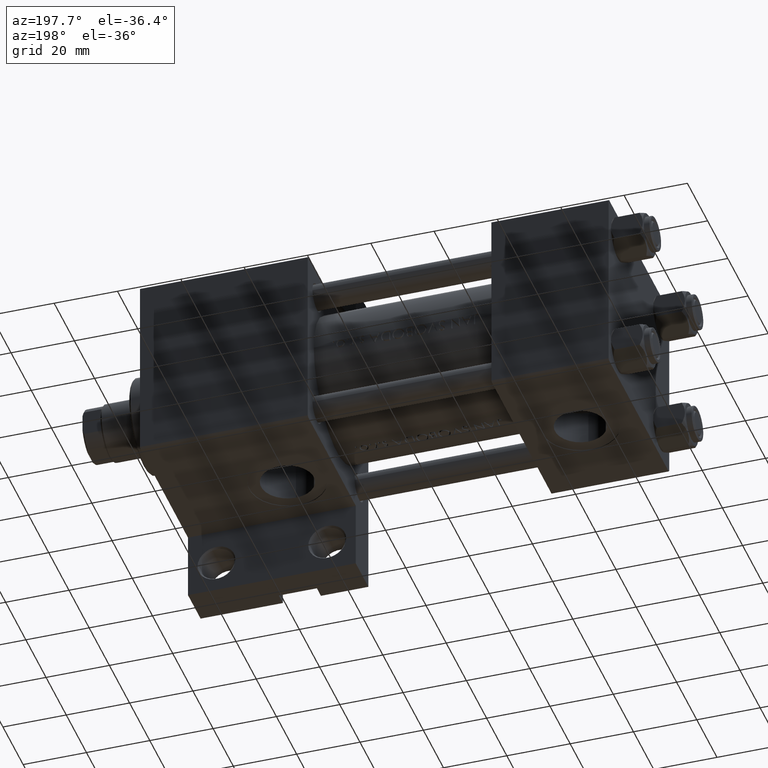
[diagram: clean part render]
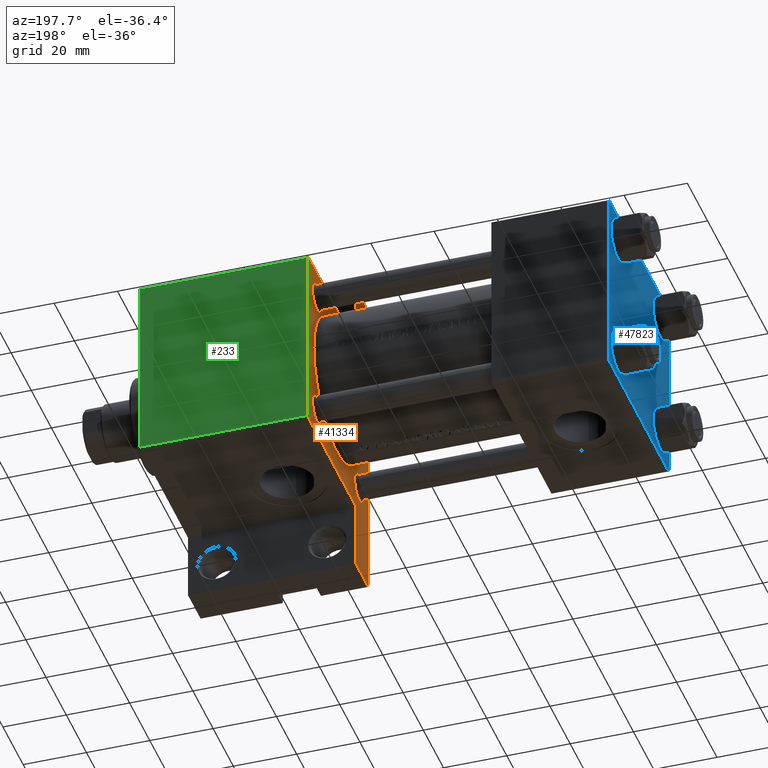
[diagram: same view with three faces highlighted in distinct colors, each labeled with its STEP entity id]
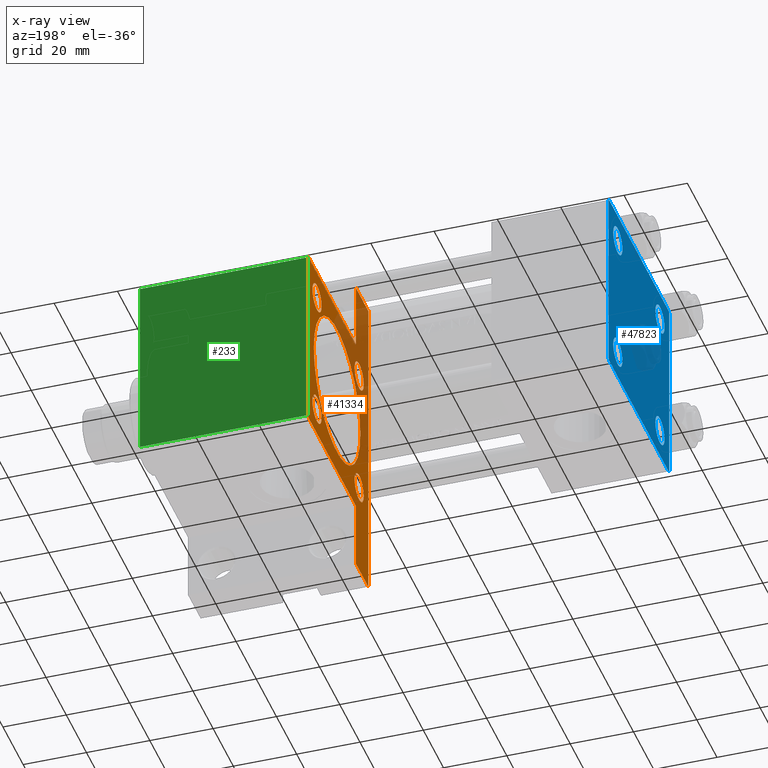
[diagram: x-ray of the same camera — body ghosted, the three highlighted faces saturated]
A machine part, auxiliary view with three faces highlighted in distinct colors.
The next image is the same camera in x-ray (body ghosted, the three faces saturated) — at least one of them is partly hidden behind the body in this view.
Their STEP definitions:

[orange] entity #41334 — the highlighted planar face has unit normal (-1, 0, -0).
#73 = CIRCLE ( 'NONE', #32353, 4.500000000000007105 ) ;
#193 = ORIENTED_EDGE ( 'NONE', *, *, #23234, .T. ) ;
#827 = VECTOR ( 'NONE', #14568, 1000.000000000000000 ) ;
#1005 = LINE ( 'NONE', #37741, #15352 ) ;
#1139 = CARTESIAN_POINT ( 'NONE',  ( 95.00000000000000000, -29.74999999999918643, 29.75000000000083489 ) ) ;
#1269 = CARTESIAN_POINT ( 'NONE',  ( 95.00000000000000000, 0.000000000000000000, 0.000000000000000000 ) ) ;
#1609 = EDGE_CURVE ( 'NONE', #26492, #2798, #39566, .T. ) ;
#1756 = FACE_BOUND ( 'NONE', #48092, .T. ) ;
#2008 = ORIENTED_EDGE ( 'NONE', *, *, #23880, .F. ) ;
#2347 = EDGE_LOOP ( 'NONE', ( #14736, #22246 ) ) ;
#2739 = VERTEX_POINT ( 'NONE', #41211 ) ;
#2798 = VERTEX_POINT ( 'NONE', #40483 ) ;
#3748 = VECTOR ( 'NONE', #44422, 1000.000000000000114 ) ;
#3816 = EDGE_CURVE ( 'NONE', #27832, #28043, #18248, .T. ) ;
#4002 = ORIENTED_EDGE ( 'NONE', *, *, #32441, .T. ) ;
#4029 = CIRCLE ( 'NONE', #45799, 4.500000000000007105 ) ;
#4168 = CARTESIAN_POINT ( 'NONE',  ( 95.00000000000000000, 20.84999999999999787, -25.35000000000000853 ) ) ;
#4318 = CARTESIAN_POINT ( 'NONE',  ( 95.00000000000000000, 20.84999999999999787, 16.34999999999999432 ) ) ;
#4419 = AXIS2_PLACEMENT_3D ( 'NONE', #29352, #44417, #40720 ) ;
#4437 = CARTESIAN_POINT ( 'NONE',  ( 95.00000000000000000, 20.84999999999999787, 20.85000000000000142 ) ) ;
#4466 = EDGE_CURVE ( 'NONE', #28643, #37609, #44851, .T. ) ;
#4702 = EDGE_CURVE ( 'NONE', #16919, #26312, #22190, .T. ) ;
#4817 = CARTESIAN_POINT ( 'NONE',  ( 95.00000000000000000, 20.84999999999999787, 20.85000000000000142 ) ) ;
#5158 = CARTESIAN_POINT ( 'NONE',  ( 95.00000000000000000, -1.224646799147354686E-16, 24.00000000000000000 ) ) ;
#5656 = DIRECTION ( 'NONE',  ( 0.000000000000000000, 0.000000000000000000, -1.000000000000000000 ) ) ;
#5715 = ORIENTED_EDGE ( 'NONE', *, *, #40300, .T. ) ;
#5898 = ORIENTED_EDGE ( 'NONE', *, *, #13881, .T. ) ;
#6409 = CARTESIAN_POINT ( 'NONE',  ( 94.99999999999998579, -51.50000000000000711, -17.49999999999999645 ) ) ;
#6979 = DIRECTION ( 'NONE',  ( 0.000000000000000000, 0.000000000000000000, -1.000000000000000000 ) ) ;
#8004 = DIRECTION ( 'NONE',  ( 0.000000000000000000, 0.000000000000000000, 1.000000000000000000 ) ) ;
#8199 = VERTEX_POINT ( 'NONE', #29381 ) ;
#8653 = FACE_BOUND ( 'NONE', #44129, .T. ) ;
#8722 = VERTEX_POINT ( 'NONE', #46289 ) ;
#8796 = ORIENTED_EDGE ( 'NONE', *, *, #1609, .F. ) ;
#9333 = AXIS2_PLACEMENT_3D ( 'NONE', #4437, #27362, #42423 ) ;
#9339 = VERTEX_POINT ( 'NONE', #45028 ) ;
#9367 = DIRECTION ( 'NONE',  ( 1.000000000000000000, -0.000000000000000000, 0.000000000000000000 ) ) ;
#9763 = ORIENTED_EDGE ( 'NONE', *, *, #20772, .T. ) ;
#10124 = EDGE_CURVE ( 'NONE', #24781, #44013, #26021, .T. ) ;
#10144 = DIRECTION ( 'NONE',  ( 1.000000000000000000, -0.000000000000000000, 0.000000000000000000 ) ) ;
#10638 = ORIENTED_EDGE ( 'NONE', *, *, #12076, .T. ) ;
#10872 = AXIS2_PLACEMENT_3D ( 'NONE', #23919, #9367, #12100 ) ;
#11227 = EDGE_CURVE ( 'NONE', #8199, #22906, #73, .T. ) ;
#11744 = VECTOR ( 'NONE', #5656, 1000.000000000000000 ) ;
#11844 = ORIENTED_EDGE ( 'NONE', *, *, #44797, .T. ) ;
#12076 = EDGE_CURVE ( 'NONE', #31168, #43957, #4029, .T. ) ;
#12100 = DIRECTION ( 'NONE',  ( 0.000000000000000000, 0.000000000000000000, 1.000000000000000000 ) ) ;
#12440 = DIRECTION ( 'NONE',  ( 1.000000000000000000, -0.000000000000000000, 0.000000000000000000 ) ) ;
#12553 = DIRECTION ( 'NONE',  ( 1.000000000000000000, -0.000000000000000000, 0.000000000000000000 ) ) ;
#12854 = ORIENTED_EDGE ( 'NONE', *, *, #30401, .T. ) ;
#13285 = CIRCLE ( 'NONE', #9333, 4.500000000000007105 ) ;
#13881 = EDGE_CURVE ( 'NONE', #22906, #8199, #41887, .T. ) ;
#14178 = CARTESIAN_POINT ( 'NONE',  ( 95.00000000000000000, 2.694222958124176415E-15, -22.00000000000000000 ) ) ;
#14329 = CARTESIAN_POINT ( 'NONE',  ( 95.00000000000000000, 51.50000000000000711, -17.49999999999999645 ) ) ;
#14399 = LINE ( 'NONE', #45215, #47136 ) ;
#14568 = DIRECTION ( 'NONE',  ( 6.454785026890443649E-16, 1.000000000000000000, 0.000000000000000000 ) ) ;
#14736 = ORIENTED_EDGE ( 'NONE', *, *, #33236, .T. ) ;
#14922 = ORIENTED_EDGE ( 'NONE', *, *, #46861, .F. ) ;
#15278 = VECTOR ( 'NONE', #20115, 1000.000000000000000 ) ;
#15352 = VECTOR ( 'NONE', #16046, 1000.000000000000000 ) ;
#16046 = DIRECTION ( 'NONE',  ( 0.000000000000000000, -1.000000000000000000, -1.156482317317871478E-16 ) ) ;
#16527 = CARTESIAN_POINT ( 'NONE',  ( 95.00000000000000000, -1.224646799147354686E-16, 1.000000000000000888 ) ) ;
#16584 = AXIS2_PLACEMENT_3D ( 'NONE', #34736, #12553, #28022 ) ;
#16919 = VERTEX_POINT ( 'NONE', #22536 ) ;
#17019 = PLANE ( 'NONE',  #27397 ) ;
#17179 = CIRCLE ( 'NONE', #10872, 4.500000000000007105 ) ;
#17428 = DIRECTION ( 'NONE',  ( 1.000000000000000000, -0.000000000000000000, 0.000000000000000000 ) ) ;
#17596 = CARTESIAN_POINT ( 'NONE',  ( 95.00000000000000000, 30.00000000000000000, 30.00000000000000000 ) ) ;
#17734 = DIRECTION ( 'NONE',  ( 0.000000000000000000, 0.000000000000000000, 1.000000000000000000 ) ) ;
#18067 = DIRECTION ( 'NONE',  ( -0.000000000000000000, 1.000000000000000000, -0.000000000000000000 ) ) ;
#18248 = LINE ( 'NONE', #33290, #827 ) ;
#19649 = VECTOR ( 'NONE', #30076, 1000.000000000000000 ) ;
#20115 = DIRECTION ( 'NONE',  ( -0.000000000000000000, 0.7071067811865671127, 0.7071067811865279218 ) ) ;
#20711 = DIRECTION ( 'NONE',  ( -1.000000000000000000, 0.000000000000000000, -0.000000000000000000 ) ) ;
#20772 = EDGE_CURVE ( 'NONE', #44013, #24781, #17179, .T. ) ;
#21004 = DIRECTION ( 'NONE',  ( 0.000000000000000000, 0.000000000000000000, 1.000000000000000000 ) ) ;
#21477 = LINE ( 'NONE', #32585, #3748 ) ;
#21527 = CARTESIAN_POINT ( 'NONE',  ( 94.99999999999998579, -51.50000000000000711, -17.49999999999999645 ) ) ;
#21818 = ORIENTED_EDGE ( 'NONE', *, *, #23173, .T. ) ;
#22183 = AXIS2_PLACEMENT_3D ( 'NONE', #38815, #12440, #21004 ) ;
#22187 = ORIENTED_EDGE ( 'NONE', *, *, #10124, .T. ) ;
#22190 = LINE ( 'NONE', #14329, #19649 ) ;
#22246 = ORIENTED_EDGE ( 'NONE', *, *, #4466, .T. ) ;
#22436 = VERTEX_POINT ( 'NONE', #14178 ) ;
#22536 = CARTESIAN_POINT ( 'NONE',  ( 95.00000000000000000, 51.50000000000000711, -17.49999999999999645 ) ) ;
#22553 = DIRECTION ( 'NONE',  ( 1.000000000000000000, -0.000000000000000000, 0.000000000000000000 ) ) ;
#22906 = VERTEX_POINT ( 'NONE', #26082 ) ;
#23173 = EDGE_CURVE ( 'NONE', #22436, #46239, #44748, .T. ) ;
#23234 = EDGE_CURVE ( 'NONE', #43957, #31168, #13285, .T. ) ;
#23687 = DIRECTION ( 'NONE',  ( -0.000000000000000000, 0.000000000000000000, 1.000000000000000000 ) ) ;
#23880 = EDGE_CURVE ( 'NONE', #2739, #28043, #14399, .T. ) ;
#23919 = CARTESIAN_POINT ( 'NONE',  ( 95.00000000000000000, -20.84999999999999076, -20.85000000000000497 ) ) ;
#24150 = DIRECTION ( 'NONE',  ( 1.000000000000000000, 0.000000000000000000, 0.000000000000000000 ) ) ;
#24403 = LINE ( 'NONE', #39466, #11744 ) ;
#24570 = CARTESIAN_POINT ( 'NONE',  ( 95.00000000000000000, 20.84999999999999787, -20.85000000000000142 ) ) ;
#24781 = VERTEX_POINT ( 'NONE', #47631 ) ;
#25366 = CARTESIAN_POINT ( 'NONE',  ( 95.00000000000000000, -20.84999999999999076, 20.85000000000000497 ) ) ;
#26021 = CIRCLE ( 'NONE', #16584, 4.500000000000007105 ) ;
#26082 = CARTESIAN_POINT ( 'NONE',  ( 95.00000000000000000, -20.84999999999999076, 25.35000000000001208 ) ) ;
#26312 = VERTEX_POINT ( 'NONE', #39670 ) ;
#26492 = VERTEX_POINT ( 'NONE', #30265 ) ;
#27362 = DIRECTION ( 'NONE',  ( 1.000000000000000000, -0.000000000000000000, 0.000000000000000000 ) ) ;
#27381 = FACE_BOUND ( 'NONE', #2347, .T. ) ;
#27397 = AXIS2_PLACEMENT_3D ( 'NONE', #1269, #20711, #23687 ) ;
#27832 = VERTEX_POINT ( 'NONE', #21527 ) ;
#27859 = FACE_OUTER_BOUND ( 'NONE', #43064, .T. ) ;
#28022 = DIRECTION ( 'NONE',  ( 0.000000000000000000, 0.000000000000000000, 1.000000000000000000 ) ) ;
#28043 = VERTEX_POINT ( 'NONE', #39271 ) ;
#28501 = DIRECTION ( 'NONE',  ( 0.000000000000000000, 0.000000000000000000, 1.000000000000000000 ) ) ;
#28643 = VERTEX_POINT ( 'NONE', #4168 ) ;
#29135 = CARTESIAN_POINT ( 'NONE',  ( 95.00000000000000000, 20.84999999999999787, 25.35000000000000853 ) ) ;
#29352 = CARTESIAN_POINT ( 'NONE',  ( 95.00000000000000000, -1.224646799147354686E-16, 1.000000000000000888 ) ) ;
#29381 = CARTESIAN_POINT ( 'NONE',  ( 95.00000000000000000, -20.84999999999999076, 16.34999999999999787 ) ) ;
#29427 = ORIENTED_EDGE ( 'NONE', *, *, #37062, .T. ) ;
#29613 = ORIENTED_EDGE ( 'NONE', *, *, #3816, .T. ) ;
#30076 = DIRECTION ( 'NONE',  ( 0.000000000000000000, 0.000000000000000000, -1.000000000000000000 ) ) ;
#30265 = CARTESIAN_POINT ( 'NONE',  ( 95.00000000000000000, 29.50000000000000000, 30.00000000000000000 ) ) ;
#30401 = EDGE_CURVE ( 'NONE', #26312, #36795, #1005, .T. ) ;
#31168 = VERTEX_POINT ( 'NONE', #4318 ) ;
#32353 = AXIS2_PLACEMENT_3D ( 'NONE', #25366, #48061, #17734 ) ;
#32441 = EDGE_CURVE ( 'NONE', #2739, #2798, #35152, .T. ) ;
#32585 = CARTESIAN_POINT ( 'NONE',  ( 95.00000000000000000, 29.74999999999999645, 29.74999999999999645 ) ) ;
#32619 = LINE ( 'NONE', #40513, #39967 ) ;
#32829 = DIRECTION ( 'NONE',  ( 0.000000000000000000, 0.000000000000000000, 1.000000000000000000 ) ) ;
#33236 = EDGE_CURVE ( 'NONE', #37609, #28643, #38944, .T. ) ;
#33290 = CARTESIAN_POINT ( 'NONE',  ( 94.99999999999998579, -51.50000000000000711, -17.49999999999999645 ) ) ;
#34736 = CARTESIAN_POINT ( 'NONE',  ( 95.00000000000000000, -20.84999999999999076, -20.85000000000000497 ) ) ;
#35152 = LINE ( 'NONE', #1139, #15278 ) ;
#35333 = VECTOR ( 'NONE', #36510, 1000.000000000000000 ) ;
#36510 = DIRECTION ( 'NONE',  ( 0.000000000000000000, 0.000000000000000000, -1.000000000000000000 ) ) ;
#36694 = CIRCLE ( 'NONE', #4419, 23.00000000000000000 ) ;
#36795 = VERTEX_POINT ( 'NONE', #45216 ) ;
#37062 = EDGE_CURVE ( 'NONE', #46239, #22436, #36694, .T. ) ;
#37609 = VERTEX_POINT ( 'NONE', #46751 ) ;
#37741 = CARTESIAN_POINT ( 'NONE',  ( 95.00000000000000000, 30.00000000000000000, -29.99999999999999289 ) ) ;
#38342 = CARTESIAN_POINT ( 'NONE',  ( 95.00000000000000000, 20.84999999999999787, -20.85000000000000142 ) ) ;
#38815 = CARTESIAN_POINT ( 'NONE',  ( 95.00000000000000000, -20.84999999999999076, 20.85000000000000497 ) ) ;
#38944 = CIRCLE ( 'NONE', #45231, 4.500000000000007105 ) ;
#39061 = EDGE_LOOP ( 'NONE', ( #22187, #9763 ) ) ;
#39271 = CARTESIAN_POINT ( 'NONE',  ( 95.00000000000000000, -30.00000000000000000, -17.49999999999999645 ) ) ;
#39465 = FACE_BOUND ( 'NONE', #48749, .T. ) ;
#39466 = CARTESIAN_POINT ( 'NONE',  ( 95.00000000000000000, 30.00000000000000000, 30.00000000000000000 ) ) ;
#39566 = LINE ( 'NONE', #17596, #47770 ) ;
#39670 = CARTESIAN_POINT ( 'NONE',  ( 95.00000000000000000, 51.50000000000000711, -29.99999999999999645 ) ) ;
#39967 = VECTOR ( 'NONE', #18067, 1000.000000000000000 ) ;
#40220 = LINE ( 'NONE', #6409, #35333 ) ;
#40300 = EDGE_CURVE ( 'NONE', #26492, #8722, #21477, .T. ) ;
#40483 = CARTESIAN_POINT ( 'NONE',  ( 95.00000000000000000, -29.50000000000002487, 29.99999999999999289 ) ) ;
#40513 = CARTESIAN_POINT ( 'NONE',  ( 95.00000000000000000, 51.50000000000000711, -17.49999999999999645 ) ) ;
#40720 = DIRECTION ( 'NONE',  ( 0.000000000000000000, 0.000000000000000000, -1.000000000000000000 ) ) ;
#40903 = AXIS2_PLACEMENT_3D ( 'NONE', #38342, #22553, #8004 ) ;
#41176 = ORIENTED_EDGE ( 'NONE', *, *, #48159, .T. ) ;
#41211 = CARTESIAN_POINT ( 'NONE',  ( 95.00000000000000000, -30.00000000000000000, 29.50000000000004619 ) ) ;
#41334 = ADVANCED_FACE ( 'NONE', ( #1756, #39465, #27381, #42441, #8653, #27859 ), #17019, .T. ) ;
#41887 = CIRCLE ( 'NONE', #22183, 4.500000000000007105 ) ;
#42423 = DIRECTION ( 'NONE',  ( 0.000000000000000000, 0.000000000000000000, 1.000000000000000000 ) ) ;
#42441 = FACE_BOUND ( 'NONE', #39061, .T. ) ;
#42581 = ORIENTED_EDGE ( 'NONE', *, *, #4702, .T. ) ;
#42904 = DIRECTION ( 'NONE',  ( 0.000000000000000000, 0.000000000000000000, -1.000000000000000000 ) ) ;
#43024 = DIRECTION ( 'NONE',  ( 0.000000000000000000, -1.000000000000000000, -1.156482317317871478E-16 ) ) ;
#43054 = ORIENTED_EDGE ( 'NONE', *, *, #11227, .T. ) ;
#43064 = EDGE_LOOP ( 'NONE', ( #8796, #5715, #41176, #11844, #42581, #12854, #14922, #29613, #2008, #4002 ) ) ;
#43957 = VERTEX_POINT ( 'NONE', #29135 ) ;
#44013 = VERTEX_POINT ( 'NONE', #45427 ) ;
#44129 = EDGE_LOOP ( 'NONE', ( #29427, #21818 ) ) ;
#44417 = DIRECTION ( 'NONE',  ( 1.000000000000000000, 0.000000000000000000, 0.000000000000000000 ) ) ;
#44422 = DIRECTION ( 'NONE',  ( 0.000000000000000000, 0.7071067811865474617, -0.7071067811865474617 ) ) ;
#44711 = AXIS2_PLACEMENT_3D ( 'NONE', #16527, #24150, #42904 ) ;
#44748 = CIRCLE ( 'NONE', #44711, 23.00000000000000000 ) ;
#44797 = EDGE_CURVE ( 'NONE', #9339, #16919, #32619, .T. ) ;
#44851 = CIRCLE ( 'NONE', #40903, 4.500000000000007105 ) ;
#45028 = CARTESIAN_POINT ( 'NONE',  ( 95.00000000000000000, 30.00000000000000000, -17.49999999999998224 ) ) ;
#45215 = CARTESIAN_POINT ( 'NONE',  ( 95.00000000000000000, -30.00000000000000000, 29.99999999999999289 ) ) ;
#45216 = CARTESIAN_POINT ( 'NONE',  ( 94.99999999999998579, -51.50000000000000711, -29.99999999999999645 ) ) ;
#45231 = AXIS2_PLACEMENT_3D ( 'NONE', #24570, #17428, #28501 ) ;
#45427 = CARTESIAN_POINT ( 'NONE',  ( 95.00000000000000000, -20.84999999999999076, -25.35000000000001208 ) ) ;
#45799 = AXIS2_PLACEMENT_3D ( 'NONE', #4817, #10144, #32829 ) ;
#46239 = VERTEX_POINT ( 'NONE', #5158 ) ;
#46289 = CARTESIAN_POINT ( 'NONE',  ( 95.00000000000000000, 30.00000000000000000, 29.50000000000000000 ) ) ;
#46751 = CARTESIAN_POINT ( 'NONE',  ( 95.00000000000000000, 20.84999999999999787, -16.34999999999999432 ) ) ;
#46861 = EDGE_CURVE ( 'NONE', #27832, #36795, #40220, .T. ) ;
#47136 = VECTOR ( 'NONE', #6979, 1000.000000000000000 ) ;
#47631 = CARTESIAN_POINT ( 'NONE',  ( 95.00000000000000000, -20.84999999999999076, -16.34999999999999787 ) ) ;
#47770 = VECTOR ( 'NONE', #43024, 1000.000000000000000 ) ;
#48061 = DIRECTION ( 'NONE',  ( 1.000000000000000000, -0.000000000000000000, 0.000000000000000000 ) ) ;
#48092 = EDGE_LOOP ( 'NONE', ( #5898, #43054 ) ) ;
#48159 = EDGE_CURVE ( 'NONE', #8722, #9339, #24403, .T. ) ;
#48749 = EDGE_LOOP ( 'NONE', ( #193, #10638 ) ) ;

[blue] entity #47823 — the highlighted planar face has unit normal (-1, 0, -0).
#58 = ORIENTED_EDGE ( 'NONE', *, *, #31734, .T. ) ;
#538 = CARTESIAN_POINT ( 'NONE',  ( 0.000000000000000000, -20.84999999999999076, -16.34999999999998721 ) ) ;
#563 = ORIENTED_EDGE ( 'NONE', *, *, #28743, .T. ) ;
#1413 = VECTOR ( 'NONE', #42825, 1000.000000000000114 ) ;
#1537 = CARTESIAN_POINT ( 'NONE',  ( 0.000000000000000000, 29.49999999999999289, 30.00000000000000000 ) ) ;
#1864 = CARTESIAN_POINT ( 'NONE',  ( 0.000000000000000000, 29.74999999999957723, -29.75000000000040501 ) ) ;
#1887 = ORIENTED_EDGE ( 'NONE', *, *, #42095, .T. ) ;
#2144 = EDGE_CURVE ( 'NONE', #24429, #46164, #12841, .T. ) ;
#2167 = LINE ( 'NONE', #25058, #29251 ) ;
#2518 = LINE ( 'NONE', #8952, #46432 ) ;
#2666 = VERTEX_POINT ( 'NONE', #36536 ) ;
#2790 = CARTESIAN_POINT ( 'NONE',  ( 0.000000000000000000, 29.99999999999999289, 30.00000000000000000 ) ) ;
#2867 = EDGE_CURVE ( 'NONE', #22848, #18492, #46485, .T. ) ;
#3260 = CARTESIAN_POINT ( 'NONE',  ( 0.000000000000000000, -20.84999999999999076, 25.35000000000002274 ) ) ;
#3938 = AXIS2_PLACEMENT_3D ( 'NONE', #48357, #14602, #37761 ) ;
#4270 = CARTESIAN_POINT ( 'NONE',  ( 0.000000000000000000, 20.84999999999999787, 16.34999999999998366 ) ) ;
#4359 = ORIENTED_EDGE ( 'NONE', *, *, #7029, .T. ) ;
#4421 = VERTEX_POINT ( 'NONE', #17640 ) ;
#4554 = VECTOR ( 'NONE', #6458, 1000.000000000000000 ) ;
#4819 = CARTESIAN_POINT ( 'NONE',  ( 0.000000000000000000, -30.00000000000000000, 29.49999999999999289 ) ) ;
#5150 = DIRECTION ( 'NONE',  ( 1.000000000000000000, -0.000000000000000000, 0.000000000000000000 ) ) ;
#5296 = CARTESIAN_POINT ( 'NONE',  ( 0.000000000000000000, 20.84999999999999787, 25.35000000000001918 ) ) ;
#5467 = DIRECTION ( 'NONE',  ( 1.000000000000000000, -0.000000000000000000, 0.000000000000000000 ) ) ;
#5714 = FACE_BOUND ( 'NONE', #20905, .T. ) ;
#5875 = CARTESIAN_POINT ( 'NONE',  ( 0.000000000000000000, 29.99999999999999289, 30.00000000000000000 ) ) ;
#6458 = DIRECTION ( 'NONE',  ( 0.000000000000000000, 0.000000000000000000, -1.000000000000000000 ) ) ;
#7029 = EDGE_CURVE ( 'NONE', #24485, #40945, #35771, .T. ) ;
#8226 = DIRECTION ( 'NONE',  ( 1.000000000000000000, -0.000000000000000000, 0.000000000000000000 ) ) ;
#8601 = DIRECTION ( 'NONE',  ( 0.000000000000000000, 0.000000000000000000, 1.000000000000000000 ) ) ;
#8887 = DIRECTION ( 'NONE',  ( -0.000000000000000000, 0.7071067811865474617, 0.7071067811865474617 ) ) ;
#8932 = CARTESIAN_POINT ( 'NONE',  ( 0.000000000000000000, 29.99999999999999289, -30.00000000000000000 ) ) ;
#8952 = CARTESIAN_POINT ( 'NONE',  ( 0.000000000000000000, 29.74999999999999645, 29.74999999999999645 ) ) ;
#9197 = VECTOR ( 'NONE', #8887, 1000.000000000000114 ) ;
#10657 = LINE ( 'NONE', #2790, #4554 ) ;
#10851 = AXIS2_PLACEMENT_3D ( 'NONE', #42392, #34996, #8601 ) ;
#10877 = DIRECTION ( 'NONE',  ( 1.000000000000000000, -0.000000000000000000, 0.000000000000000000 ) ) ;
#10891 = EDGE_CURVE ( 'NONE', #19724, #47964, #22113, .T. ) ;
#11121 = CARTESIAN_POINT ( 'NONE',  ( 0.000000000000000000, 20.84999999999999787, -25.35000000000001918 ) ) ;
#11637 = CIRCLE ( 'NONE', #10851, 4.500000000000017764 ) ;
#11686 = DIRECTION ( 'NONE',  ( 0.000000000000000000, 0.000000000000000000, 1.000000000000000000 ) ) ;
#11892 = AXIS2_PLACEMENT_3D ( 'NONE', #40482, #10877, #25912 ) ;
#12069 = DIRECTION ( 'NONE',  ( 1.000000000000000000, -0.000000000000000000, 0.000000000000000000 ) ) ;
#12757 = LINE ( 'NONE', #23590, #1413 ) ;
#12841 = LINE ( 'NONE', #17012, #9197 ) ;
#13138 = DIRECTION ( 'NONE',  ( -0.000000000000000000, 0.000000000000000000, 1.000000000000000000 ) ) ;
#13338 = EDGE_CURVE ( 'NONE', #24429, #4421, #2167, .T. ) ;
#13599 = CIRCLE ( 'NONE', #23850, 4.500000000000017764 ) ;
#13602 = CARTESIAN_POINT ( 'NONE',  ( 0.000000000000000000, -20.84999999999999076, -25.35000000000002274 ) ) ;
#13637 = ORIENTED_EDGE ( 'NONE', *, *, #44395, .T. ) ;
#13866 = FACE_BOUND ( 'NONE', #48696, .T. ) ;
#14494 = EDGE_LOOP ( 'NONE', ( #30853, #1887 ) ) ;
#14503 = EDGE_LOOP ( 'NONE', ( #4359, #563 ) ) ;
#14532 = AXIS2_PLACEMENT_3D ( 'NONE', #38009, #20004, #35052 ) ;
#14602 = DIRECTION ( 'NONE',  ( 1.000000000000000000, -0.000000000000000000, 0.000000000000000000 ) ) ;
#15983 = AXIS2_PLACEMENT_3D ( 'NONE', #27342, #12069, #38212 ) ;
#16519 = ORIENTED_EDGE ( 'NONE', *, *, #44842, .T. ) ;
#16677 = ORIENTED_EDGE ( 'NONE', *, *, #28681, .T. ) ;
#16856 = VECTOR ( 'NONE', #35795, 1000.000000000000000 ) ;
#17012 = CARTESIAN_POINT ( 'NONE',  ( -0.000000000000000000, -29.74999999999999645, 29.74999999999999645 ) ) ;
#17640 = CARTESIAN_POINT ( 'NONE',  ( 0.000000000000000000, -30.00000000000000000, -29.50000000000001776 ) ) ;
#18492 = VERTEX_POINT ( 'NONE', #13602 ) ;
#18777 = AXIS2_PLACEMENT_3D ( 'NONE', #31402, #8226, #11686 ) ;
#19094 = EDGE_LOOP ( 'NONE', ( #16519, #40517, #58, #13637, #45682, #32498, #24835, #47004 ) ) ;
#19459 = CARTESIAN_POINT ( 'NONE',  ( 0.000000000000000000, 20.84999999999999787, 20.85000000000000142 ) ) ;
#19724 = VERTEX_POINT ( 'NONE', #31388 ) ;
#20004 = DIRECTION ( 'NONE',  ( 1.000000000000000000, -0.000000000000000000, 0.000000000000000000 ) ) ;
#20445 = EDGE_CURVE ( 'NONE', #22775, #27758, #46285, .T. ) ;
#20749 = LINE ( 'NONE', #8932, #16856 ) ;
#20761 = FACE_OUTER_BOUND ( 'NONE', #19094, .T. ) ;
#20905 = EDGE_LOOP ( 'NONE', ( #32491, #16677 ) ) ;
#20996 = FACE_BOUND ( 'NONE', #14494, .T. ) ;
#20998 = ORIENTED_EDGE ( 'NONE', *, *, #20445, .T. ) ;
#21551 = EDGE_CURVE ( 'NONE', #31822, #32164, #47687, .T. ) ;
#22113 = CIRCLE ( 'NONE', #11892, 4.500000000000017764 ) ;
#22479 = VERTEX_POINT ( 'NONE', #36599 ) ;
#22601 = VECTOR ( 'NONE', #40053, 999.9999999999998863 ) ;
#22775 = VERTEX_POINT ( 'NONE', #3260 ) ;
#22848 = VERTEX_POINT ( 'NONE', #538 ) ;
#23590 = CARTESIAN_POINT ( 'NONE',  ( 0.000000000000000000, -29.75000000000001066, -29.75000000000001066 ) ) ;
#23850 = AXIS2_PLACEMENT_3D ( 'NONE', #19459, #5150, #30552 ) ;
#24429 = VERTEX_POINT ( 'NONE', #4819 ) ;
#24458 = FACE_BOUND ( 'NONE', #14503, .T. ) ;
#24485 = VERTEX_POINT ( 'NONE', #5296 ) ;
#24835 = ORIENTED_EDGE ( 'NONE', *, *, #32161, .F. ) ;
#24966 = AXIS2_PLACEMENT_3D ( 'NONE', #42966, #5467, #46683 ) ;
#25058 = CARTESIAN_POINT ( 'NONE',  ( 0.000000000000000000, -30.00000000000000000, 29.99999999999999289 ) ) ;
#25912 = DIRECTION ( 'NONE',  ( 0.000000000000000000, 0.000000000000000000, 1.000000000000000000 ) ) ;
#27342 = CARTESIAN_POINT ( 'NONE',  ( 0.000000000000000000, 20.84999999999999787, -20.85000000000000142 ) ) ;
#27758 = VERTEX_POINT ( 'NONE', #44967 ) ;
#28146 = PLANE ( 'NONE',  #38540 ) ;
#28681 = EDGE_CURVE ( 'NONE', #47964, #19724, #42752, .T. ) ;
#28743 = EDGE_CURVE ( 'NONE', #40945, #24485, #13599, .T. ) ;
#29251 = VECTOR ( 'NONE', #47282, 1000.000000000000000 ) ;
#29822 = CARTESIAN_POINT ( 'NONE',  ( 0.000000000000000000, -29.49999999999998579, 29.99999999999999289 ) ) ;
#30214 = VECTOR ( 'NONE', #32511, 1000.000000000000000 ) ;
#30552 = DIRECTION ( 'NONE',  ( 0.000000000000000000, 0.000000000000000000, 1.000000000000000000 ) ) ;
#30853 = ORIENTED_EDGE ( 'NONE', *, *, #2867, .T. ) ;
#31388 = CARTESIAN_POINT ( 'NONE',  ( 0.000000000000000000, 20.84999999999999787, -16.34999999999998366 ) ) ;
#31402 = CARTESIAN_POINT ( 'NONE',  ( 0.000000000000000000, -20.84999999999999076, -20.85000000000000497 ) ) ;
#31634 = CARTESIAN_POINT ( 'NONE',  ( 0.000000000000000000, 0.000000000000000000, 0.000000000000000000 ) ) ;
#31734 = EDGE_CURVE ( 'NONE', #32164, #2666, #20749, .T. ) ;
#31822 = VERTEX_POINT ( 'NONE', #33067 ) ;
#32161 = EDGE_CURVE ( 'NONE', #45975, #46164, #36706, .T. ) ;
#32164 = VERTEX_POINT ( 'NONE', #39448 ) ;
#32425 = ORIENTED_EDGE ( 'NONE', *, *, #41818, .T. ) ;
#32491 = ORIENTED_EDGE ( 'NONE', *, *, #10891, .T. ) ;
#32498 = ORIENTED_EDGE ( 'NONE', *, *, #2144, .T. ) ;
#32511 = DIRECTION ( 'NONE',  ( 0.000000000000000000, -1.000000000000000000, -1.156482317317871725E-16 ) ) ;
#33067 = CARTESIAN_POINT ( 'NONE',  ( 0.000000000000000000, 29.99999999999999289, -29.50000000000000000 ) ) ;
#34996 = DIRECTION ( 'NONE',  ( 1.000000000000000000, -0.000000000000000000, 0.000000000000000000 ) ) ;
#35052 = DIRECTION ( 'NONE',  ( 0.000000000000000000, 0.000000000000000000, 1.000000000000000000 ) ) ;
#35771 = CIRCLE ( 'NONE', #14532, 4.500000000000017764 ) ;
#35795 = DIRECTION ( 'NONE',  ( 0.000000000000000000, -1.000000000000000000, -1.156482317317871725E-16 ) ) ;
#36536 = CARTESIAN_POINT ( 'NONE',  ( 0.000000000000000000, -29.50000000000000000, -30.00000000000000711 ) ) ;
#36599 = CARTESIAN_POINT ( 'NONE',  ( 0.000000000000000000, 29.99999999999999289, 29.50000000000000000 ) ) ;
#36706 = LINE ( 'NONE', #5875, #30214 ) ;
#37761 = DIRECTION ( 'NONE',  ( 0.000000000000000000, 0.000000000000000000, 1.000000000000000000 ) ) ;
#38009 = CARTESIAN_POINT ( 'NONE',  ( 0.000000000000000000, 20.84999999999999787, 20.85000000000000142 ) ) ;
#38212 = DIRECTION ( 'NONE',  ( 0.000000000000000000, 0.000000000000000000, 1.000000000000000000 ) ) ;
#38540 = AXIS2_PLACEMENT_3D ( 'NONE', #31634, #40000, #13138 ) ;
#39448 = CARTESIAN_POINT ( 'NONE',  ( 0.000000000000000000, 29.49999999999997868, -30.00000000000000000 ) ) ;
#40000 = DIRECTION ( 'NONE',  ( -1.000000000000000000, 0.000000000000000000, -0.000000000000000000 ) ) ;
#40053 = DIRECTION ( 'NONE',  ( -0.000000000000000000, -0.7071067811865574537, -0.7071067811865376918 ) ) ;
#40482 = CARTESIAN_POINT ( 'NONE',  ( 0.000000000000000000, 20.84999999999999787, -20.85000000000000142 ) ) ;
#40517 = ORIENTED_EDGE ( 'NONE', *, *, #21551, .T. ) ;
#40945 = VERTEX_POINT ( 'NONE', #4270 ) ;
#41818 = EDGE_CURVE ( 'NONE', #27758, #22775, #11637, .T. ) ;
#42095 = EDGE_CURVE ( 'NONE', #18492, #22848, #45549, .T. ) ;
#42392 = CARTESIAN_POINT ( 'NONE',  ( 0.000000000000000000, -20.84999999999999076, 20.85000000000000497 ) ) ;
#42752 = CIRCLE ( 'NONE', #15983, 4.500000000000017764 ) ;
#42825 = DIRECTION ( 'NONE',  ( 0.000000000000000000, -0.7071067811865474617, 0.7071067811865474617 ) ) ;
#42966 = CARTESIAN_POINT ( 'NONE',  ( 0.000000000000000000, -20.84999999999999076, 20.85000000000000497 ) ) ;
#44395 = EDGE_CURVE ( 'NONE', #2666, #4421, #12757, .T. ) ;
#44842 = EDGE_CURVE ( 'NONE', #22479, #31822, #10657, .T. ) ;
#44967 = CARTESIAN_POINT ( 'NONE',  ( 0.000000000000000000, -20.84999999999999076, 16.34999999999998721 ) ) ;
#45549 = CIRCLE ( 'NONE', #18777, 4.500000000000017764 ) ;
#45682 = ORIENTED_EDGE ( 'NONE', *, *, #13338, .F. ) ;
#45975 = VERTEX_POINT ( 'NONE', #1537 ) ;
#46164 = VERTEX_POINT ( 'NONE', #29822 ) ;
#46285 = CIRCLE ( 'NONE', #24966, 4.500000000000017764 ) ;
#46432 = VECTOR ( 'NONE', #47155, 1000.000000000000114 ) ;
#46485 = CIRCLE ( 'NONE', #3938, 4.500000000000017764 ) ;
#46683 = DIRECTION ( 'NONE',  ( 0.000000000000000000, 0.000000000000000000, 1.000000000000000000 ) ) ;
#47004 = ORIENTED_EDGE ( 'NONE', *, *, #47890, .T. ) ;
#47155 = DIRECTION ( 'NONE',  ( 0.000000000000000000, 0.7071067811865474617, -0.7071067811865474617 ) ) ;
#47282 = DIRECTION ( 'NONE',  ( 0.000000000000000000, 0.000000000000000000, -1.000000000000000000 ) ) ;
#47687 = LINE ( 'NONE', #1864, #22601 ) ;
#47823 = ADVANCED_FACE ( 'NONE', ( #13866, #20996, #5714, #24458, #20761 ), #28146, .T. ) ;
#47890 = EDGE_CURVE ( 'NONE', #45975, #22479, #2518, .T. ) ;
#47964 = VERTEX_POINT ( 'NONE', #11121 ) ;
#48357 = CARTESIAN_POINT ( 'NONE',  ( 0.000000000000000000, -20.84999999999999076, -20.85000000000000497 ) ) ;
#48696 = EDGE_LOOP ( 'NONE', ( #20998, #32425 ) ) ;

[green] entity #233 — the highlighted planar face has unit normal (0, -1, -0).
#233 = ADVANCED_FACE ( 'NONE', ( #29218 ), #44037, .F. ) ;
#1609 = EDGE_CURVE ( 'NONE', #26492, #2798, #39566, .T. ) ;
#2611 = CARTESIAN_POINT ( 'NONE',  ( 148.0000000000000000, 30.00000000000000000, 30.00000000000000000 ) ) ;
#2798 = VERTEX_POINT ( 'NONE', #40483 ) ;
#3558 = DIRECTION ( 'NONE',  ( 0.000000000000000000, -1.000000000000000000, -1.156482317317871478E-16 ) ) ;
#4177 = VECTOR ( 'NONE', #21396, 1000.000000000000000 ) ;
#10729 = DIRECTION ( 'NONE',  ( 0.000000000000000000, 1.156482317317871478E-16, -1.000000000000000000 ) ) ;
#13249 = VECTOR ( 'NONE', #3558, 1000.000000000000000 ) ;
#13835 = VERTEX_POINT ( 'NONE', #27922 ) ;
#14993 = VERTEX_POINT ( 'NONE', #39658 ) ;
#16273 = EDGE_LOOP ( 'NONE', ( #41230, #41182, #16991, #25832 ) ) ;
#16991 = ORIENTED_EDGE ( 'NONE', *, *, #1609, .T. ) ;
#17596 = CARTESIAN_POINT ( 'NONE',  ( 95.00000000000000000, 30.00000000000000000, 30.00000000000000000 ) ) ;
#18247 = CARTESIAN_POINT ( 'NONE',  ( 95.00000000000000000, 29.50000000000000000, 30.00000000000000000 ) ) ;
#20914 = CARTESIAN_POINT ( 'NONE',  ( 148.0000000000000000, -29.50000000000002487, 29.99999999999999289 ) ) ;
#21396 = DIRECTION ( 'NONE',  ( 1.000000000000000000, 0.000000000000000000, 0.000000000000000000 ) ) ;
#22043 = CARTESIAN_POINT ( 'NONE',  ( 148.0000000000000000, 30.00000000000000000, 30.00000000000000000 ) ) ;
#22532 = EDGE_CURVE ( 'NONE', #14993, #13835, #34125, .T. ) ;
#25276 = DIRECTION ( 'NONE',  ( 0.000000000000000000, 1.000000000000000000, 1.156482317317871478E-16 ) ) ;
#25339 = LINE ( 'NONE', #20914, #4177 ) ;
#25832 = ORIENTED_EDGE ( 'NONE', *, *, #26356, .T. ) ;
#26356 = EDGE_CURVE ( 'NONE', #2798, #13835, #25339, .T. ) ;
#26492 = VERTEX_POINT ( 'NONE', #30265 ) ;
#27257 = VECTOR ( 'NONE', #33289, 1000.000000000000000 ) ;
#27922 = CARTESIAN_POINT ( 'NONE',  ( 148.0000000000000000, -29.50000000000002487, 29.99999999999999289 ) ) ;
#29218 = FACE_OUTER_BOUND ( 'NONE', #16273, .T. ) ;
#30250 = AXIS2_PLACEMENT_3D ( 'NONE', #2611, #10729, #25276 ) ;
#30265 = CARTESIAN_POINT ( 'NONE',  ( 95.00000000000000000, 29.50000000000000000, 30.00000000000000000 ) ) ;
#33289 = DIRECTION ( 'NONE',  ( -1.000000000000000000, 0.000000000000000000, 0.000000000000000000 ) ) ;
#34125 = LINE ( 'NONE', #22043, #13249 ) ;
#36617 = EDGE_CURVE ( 'NONE', #14993, #26492, #36738, .T. ) ;
#36738 = LINE ( 'NONE', #18247, #27257 ) ;
#39566 = LINE ( 'NONE', #17596, #47770 ) ;
#39658 = CARTESIAN_POINT ( 'NONE',  ( 148.0000000000000000, 29.50000000000000000, 30.00000000000000000 ) ) ;
#40483 = CARTESIAN_POINT ( 'NONE',  ( 95.00000000000000000, -29.50000000000002487, 29.99999999999999289 ) ) ;
#41182 = ORIENTED_EDGE ( 'NONE', *, *, #36617, .T. ) ;
#41230 = ORIENTED_EDGE ( 'NONE', *, *, #22532, .F. ) ;
#43024 = DIRECTION ( 'NONE',  ( 0.000000000000000000, -1.000000000000000000, -1.156482317317871478E-16 ) ) ;
#44037 = PLANE ( 'NONE',  #30250 ) ;
#47770 = VECTOR ( 'NONE', #43024, 1000.000000000000000 ) ;